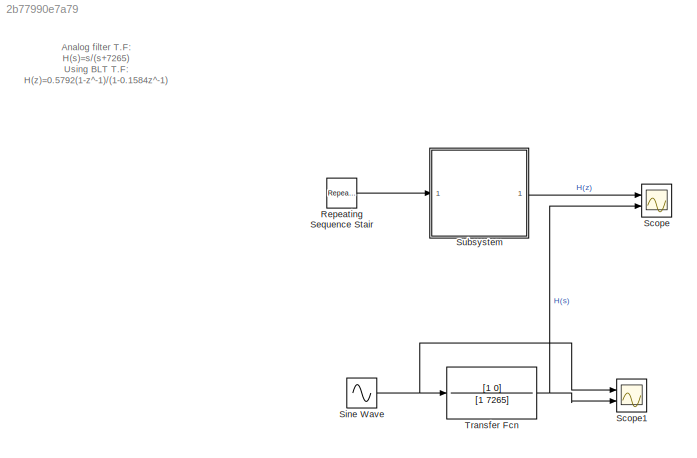
MODEL slx_2b77990e7a79
KIND model
CONFIG AbsTol = auto
CONFIG EnableMultiTasking = off
CONFIG FixedStep = auto
CONFIG MaxStep = auto
CONFIG MinStep = auto
CONFIG RelTol = 1e-3
CONFIG SampleTimeConstraint = Unconstrained
CONFIG Solver = VariableStepAuto
CONFIG SolverName = VariableStepAuto
CONFIG StartTime = 0.0
CONFIG StopTime = 10.0
BLOCK [Reference] Repeating Sequence Stair  REF=simulink/Sources/Repeating
Sequence
Stair
  Ports = [0, 1]
  SourceBlock = simulink/Sources/Repeating\nSequence\nStair
  SourceProductBaseCode = SL
  SourceType = Repeating Sequence Stair
BLOCK [Scope] Scope
  Floating = off
  NumInputPorts = 2
  Ports = [2]
  ScopeSpecificationString = Simulink.scopes.TimeScopeBlockCfg('CurrentConfiguration', extmgr.ConfigurationSet(extmgr.Configuration('Core','General UI',true),extmgr.Configuration('Core','Source UI',true),extmgr.Configuration('Sources','WiredSimulink',true),extmgr.Configuration('Visuals','Time Domain',true,'SerializedDisplays',{struct('MinYLimReal','-2.64175','MaxYLimReal','2.56651','YLabelReal','','MinYLimMag','0.00000','MaxY...<+2056ch>
BLOCK [Scope] Scope1
  Floating = off
  NumInputPorts = 2
  Ports = [2]
  ScopeSpecificationString = Simulink.scopes.TimeScopeBlockCfg('CurrentConfiguration', extmgr.ConfigurationSet(extmgr.Configuration('Core','General UI',true),extmgr.Configuration('Core','Source UI',true),extmgr.Configuration('Sources','WiredSimulink',true,'DataLoggingVariableName','ScopeData1'),extmgr.Configuration('Visuals','Time Domain',true,'SerializedDisplays',{struct('MinYLimReal','-2.5','MaxYLimReal','2.5','YLabelReal',...<+2092ch>
BLOCK [Sin] Sine Wave
  Amplitude = 2
  Frequency = 62831
  Ports = [0, 1]
  SampleTime = 0
BLOCK [ModelReference] Subsystem
  ModelNameDialog = BLT_filter1
  ModelReferenceVersion = 1.2
  Ports = [1, 1]
BLOCK [TransferFcn] Transfer Fcn
  Denominator = [1 7265]
  Numerator = [1 0]
ANNOTATION (root): Analog filter T.F: H(s)=s/(s+7265) Using BLT T.F: H(z)=0.5792(1-z^-1)/(1-0.1584z^-1)
LINE Repeating Sequence Stair:1 -> Subsystem:1
NET Sine Wave:1 -> Scope1:1, Transfer Fcn:1
LINE Subsystem:1 -> Scope:1
NET Transfer Fcn:1 -> Scope1:2, Scope:2
note: NET lines group one-source signal fan-out (src -> all destinations, sorted); 1:1 wires keep LINE
